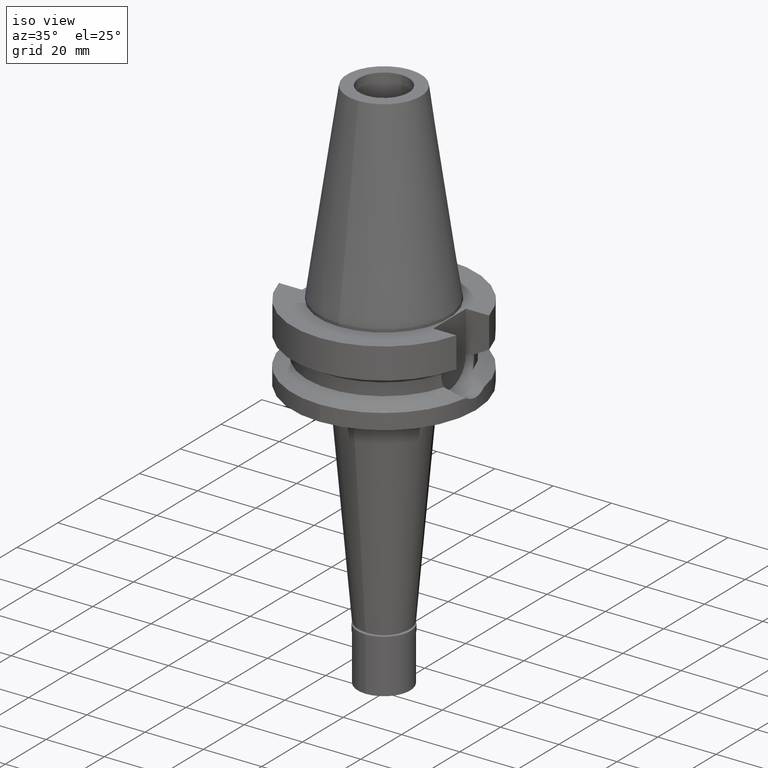
[diagram: clean part render]
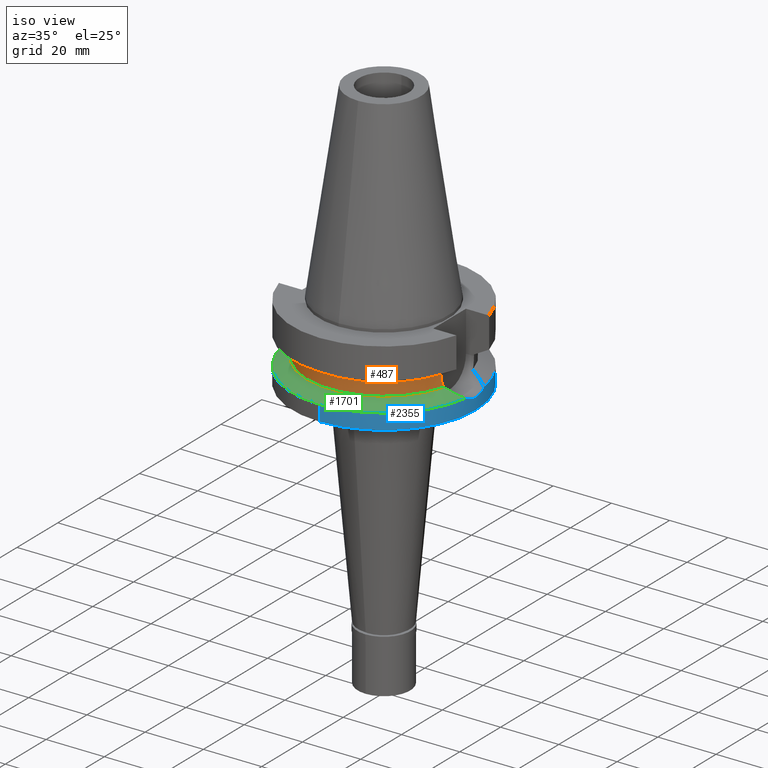
[diagram: same view with three faces highlighted in distinct colors, each labeled with its STEP entity id]
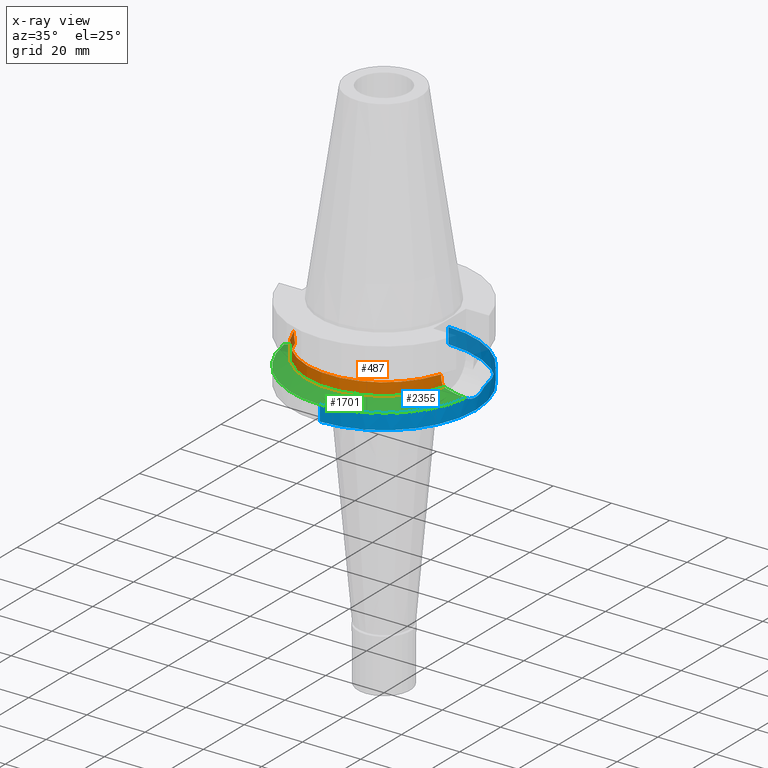
[diagram: x-ray of the same camera — body ghosted, the three highlighted faces saturated]
A machine part, iso view with three faces highlighted in distinct colors.
The next image is the same camera in x-ray (body ghosted, the three faces saturated) — at least one of them is partly hidden behind the body in this view.
Their STEP definitions:

[orange] entity #487 — the highlighted cylindrical surface (partial cylindrical patch) has radius 26.5 mm, axis along (0, 0, -1).
#2 = CARTESIAN_POINT ( 'NONE',  ( 25.28049684872011937, -7.946995976261288952, -16.24428919065888977 ) ) ;
#18 = CARTESIAN_POINT ( 'NONE',  ( 25.24772266958000344, -8.050000000000000711, -14.94999999999999929 ) ) ;
#30 = CARTESIAN_POINT ( 'NONE',  ( 25.36817666880169497, -7.663730637058542960, -17.48830498329483518 ) ) ;
#98 = CARTESIAN_POINT ( 'NONE',  ( 25.53175183775000079, -7.097862220092999941, -18.74774300138999905 ) ) ;
#144 = VECTOR ( 'NONE', #870, 1000.000000000000114 ) ;
#163 = LINE ( 'NONE', #2702, #2732 ) ;
#222 = CARTESIAN_POINT ( 'NONE',  ( 25.24772266957999278, -8.050000000000000711, -15.26998451552486280 ) ) ;
#225 = EDGE_CURVE ( 'NONE', #399, #1502, #478, .T. ) ;
#266 = CARTESIAN_POINT ( 'NONE',  ( 25.25396537036859357, -8.030898972450218665, -15.59374611992982551 ) ) ;
#320 = DIRECTION ( 'NONE',  ( 0.0000000000000000000, 0.0000000000000000000, -1.000000000000000000 ) ) ;
#321 = CARTESIAN_POINT ( 'NONE',  ( -25.27267964220301621, -7.973335155931463802, -16.24499043154087019 ) ) ;
#355 = CARTESIAN_POINT ( 'NONE',  ( 25.53175183775000079, -7.097862220092999941, -18.74774300138999905 ) ) ;
#384 = DIRECTION ( 'NONE',  ( 0.0000000000000000000, 0.0000000000000000000, -1.000000000000000000 ) ) ;
#399 = VERTEX_POINT ( 'NONE', #2690 ) ;
#416 = CARTESIAN_POINT ( 'NONE',  ( -25.24772413126000359, -8.049995415628000472, -14.45229202918999967 ) ) ;
#478 = CIRCLE ( 'NONE', #2583, 26.50000000000000711 ) ;
#483 = ORIENTED_EDGE ( 'NONE', *, *, #658, .T. ) ;
#487 = ADVANCED_FACE ( 'NONE', ( #2891 ), #2655, .T. ) ;
#500 = EDGE_LOOP ( 'NONE', ( #2335, #483, #929, #862, #2092, #518 ) ) ;
#513 = VERTEX_POINT ( 'NONE', #18 ) ;
#518 = ORIENTED_EDGE ( 'NONE', *, *, #552, .F. ) ;
#524 = DIRECTION ( 'NONE',  ( 0.9527442516822307583, -0.3037735849057093818, 0.0000000000000000000 ) ) ;
#530 = CARTESIAN_POINT ( 'NONE',  ( -25.24772266958000344, -8.050000000000000711, -14.94999999999999929 ) ) ;
#552 = EDGE_CURVE ( 'NONE', #1651, #1502, #898, .T. ) ;
#561 = CARTESIAN_POINT ( 'NONE',  ( -25.32415339823800693, -7.806463147621018450, -16.91521530248330762 ) ) ;
#613 = CARTESIAN_POINT ( 'NONE',  ( 0.0000000000000000000, 2.136273876432999670E-14, 74.44000000000001194 ) ) ;
#658 = EDGE_CURVE ( 'NONE', #2889, #2565, #1531, .T. ) ;
#687 = CARTESIAN_POINT ( 'NONE',  ( -25.53175183775000079, -7.097862220092999941, -18.74774300138999905 ) ) ;
#709 = CARTESIAN_POINT ( 'NONE',  ( 25.32121190436317093, -7.815994543146019602, -16.87693897482731131 ) ) ;
#797 = CARTESIAN_POINT ( 'NONE',  ( -25.37569502948931444, -7.637838761477326877, -17.49780446183531524 ) ) ;
#862 = ORIENTED_EDGE ( 'NONE', *, *, #880, .F. ) ;
#870 = DIRECTION ( 'NONE',  ( -2.936828755051898348E-06, 9.210967020926684321E-06, 0.9999999999532664940 ) ) ;
#880 = EDGE_CURVE ( 'NONE', #399, #513, #163, .T. ) ;
#898 = LINE ( 'NONE', #2279, #144 ) ;
#912 = CARTESIAN_POINT ( 'NONE',  ( 25.29454292549445071, -7.902026734854615597, -16.48861329468625669 ) ) ;
#929 = ORIENTED_EDGE ( 'NONE', *, *, #1135, .F. ) ;
#966 = CARTESIAN_POINT ( 'NONE',  ( -25.39161415870589877, -7.584927955021766088, -17.65164487468283383 ) ) ;
#1135 = EDGE_CURVE ( 'NONE', #513, #2565, #2391, .T. ) ;
#1184 = CARTESIAN_POINT ( 'NONE',  ( 25.43788225503731937, -7.435520914581331020, -18.11666952168572209 ) ) ;
#1191 = CARTESIAN_POINT ( 'NONE',  ( -25.53175183775000079, -7.097862220092999941, -18.74774300138999905 ) ) ;
#1215 = CARTESIAN_POINT ( 'NONE',  ( 0.0000000000000000000, 1.065333950388000029E-14, -14.45225699861000024 ) ) ;
#1252 = CARTESIAN_POINT ( 'NONE',  ( -25.32840508998330975, -7.792668837054367970, -16.96920308240288833 ) ) ;
#1417 = CARTESIAN_POINT ( 'NONE',  ( -25.32546393109957350, -7.802212764474015572, -16.93200521438827622 ) ) ;
#1485 = AXIS2_PLACEMENT_3D ( 'NONE', #1579, #2295, #2064 ) ;
#1502 = VERTEX_POINT ( 'NONE', #416 ) ;
#1531 = CIRCLE ( 'NONE', #1485, 26.49999999999998224 ) ;
#1579 = CARTESIAN_POINT ( 'NONE',  ( 0.0000000000000000000, 0.0000000000000000000, -18.74774300138999905 ) ) ;
#1651 = VERTEX_POINT ( 'NONE', #530 ) ;
#1677 = CARTESIAN_POINT ( 'NONE',  ( -25.44390372128112077, -7.408325733453185791, -18.11690357828252473 ) ) ;
#1704 = CARTESIAN_POINT ( 'NONE',  ( -25.48480632956524516, -7.266730116910171233, -18.43213421359637394 ) ) ;
#1719 = CARTESIAN_POINT ( 'NONE',  ( -25.33288764354210798, -7.778115188336431451, -17.02509724684072978 ) ) ;
#1829 = CARTESIAN_POINT ( 'NONE',  ( 25.30215121708055293, -7.877593292754567322, -16.61077438410662666 ) ) ;
#1909 = CARTESIAN_POINT ( 'NONE',  ( -25.34384264181177215, -7.742472632649029407, -17.15618260535348583 ) ) ;
#2063 = CARTESIAN_POINT ( 'NONE',  ( 25.31953811419877809, -7.821417378317961244, -16.85482737181430224 ) ) ;
#2064 = DIRECTION ( 'NONE',  ( -0.9634623335000935818, -0.2678438573619981722, 0.0000000000000000000 ) ) ;
#2075 = CARTESIAN_POINT ( 'NONE',  ( 25.31205175036245336, -7.845641664298868001, -16.75318037307348362 ) ) ;
#2092 = ORIENTED_EDGE ( 'NONE', *, *, #225, .T. ) ;
#2150 = CARTESIAN_POINT ( 'NONE',  ( -25.24772266958000344, -8.050000000000000711, -14.94999999999999929 ) ) ;
#2167 = CARTESIAN_POINT ( 'NONE',  ( -25.24772266957999634, -8.049999999999979394, -15.58980474858205945 ) ) ;
#2278 = CARTESIAN_POINT ( 'NONE',  ( 25.24772266958000344, -8.050000000000000711, -14.94999999999999929 ) ) ;
#2279 = CARTESIAN_POINT ( 'NONE',  ( -25.24772266958000344, -8.050000000000000711, -14.94999999999999929 ) ) ;
#2295 = DIRECTION ( 'NONE',  ( 0.0000000000000000000, 0.0000000000000000000, 1.000000000000000000 ) ) ;
#2335 = ORIENTED_EDGE ( 'NONE', *, *, #2537, .F. ) ;
#2391 = B_SPLINE_CURVE_WITH_KNOTS ( 'NONE', 3,
 ( #2278, #222, #266, #2513, #2, #912, #1829, #2075, #2746, #2063, #709, #30, #1184, #355 ),
 .UNSPECIFIED., .F., .F.,
 ( 4, 2, 2, 1, 1, 2, 2, 4 ),
 ( 0.0000000000000000000, 0.2500000000000046074, 0.3750000000000077161, 0.4375000000000092149, 0.4687500000000101030, 0.4843750000000106026, 0.5000000000000111022, 1.000000000000000000 ),
 .UNSPECIFIED. ) ;
#2434 = AXIS2_PLACEMENT_3D ( 'NONE', #613, #384, #2461 ) ;
#2461 = DIRECTION ( 'NONE',  ( 0.0000000000000000000, -1.000000000000000000, 0.0000000000000000000 ) ) ;
#2513 = CARTESIAN_POINT ( 'NONE',  ( 25.27269347273437106, -7.971777372259754912, -16.08140504253957559 ) ) ;
#2537 = EDGE_CURVE ( 'NONE', #2889, #1651, #2765, .T. ) ;
#2565 = VERTEX_POINT ( 'NONE', #98 ) ;
#2583 = AXIS2_PLACEMENT_3D ( 'NONE', #1215, #320, #524 ) ;
#2589 = CARTESIAN_POINT ( 'NONE',  ( -25.35408242312716354, -7.708967322931905564, -17.26962711324174293 ) ) ;
#2655 = CYLINDRICAL_SURFACE ( 'NONE', #2434, 26.50000000000000000 ) ;
#2688 = DIRECTION ( 'NONE',  ( 1.016292694956001706E-06, 3.187464706934008891E-06, -0.9999999999944036988 ) ) ;
#2690 = CARTESIAN_POINT ( 'NONE',  ( 25.24772266958000344, -8.050000000000000711, -14.45225699861000024 ) ) ;
#2702 = CARTESIAN_POINT ( 'NONE',  ( 25.24772216371000155, -8.050001586577000268, -14.45224487577000083 ) ) ;
#2732 = VECTOR ( 'NONE', #2688, 999.9999999999998863 ) ;
#2746 = CARTESIAN_POINT ( 'NONE',  ( 25.31651430600431141, -7.831206233909810521, -16.81417435993506615 ) ) ;
#2765 = B_SPLINE_CURVE_WITH_KNOTS ( 'NONE', 3,
 ( #1191, #1704, #1677, #966, #797, #2589, #1909, #1719, #1252, #1417, #561, #321, #2167, #2150 ),
 .UNSPECIFIED., .F., .F.,
 ( 4, 2, 2, 1, 1, 2, 2, 4 ),
 ( 0.0000000000000000000, 0.2500000000000101030, 0.3750000000000152656, 0.4375000000000177636, 0.4687500000000178191, 0.4843750000000180411, 0.5000000000000182077, 1.000000000000000000 ),
 .UNSPECIFIED. ) ;
#2889 = VERTEX_POINT ( 'NONE', #687 ) ;
#2891 = FACE_OUTER_BOUND ( 'NONE', #500, .T. ) ;

[blue] entity #2355 — the highlighted cylindrical surface (partial cylindrical patch) has radius 31.5 mm, axis along (0, 0, -1).
#36 = DIRECTION ( 'NONE',  ( 0.0000000000000000000, 0.0000000000000000000, -1.000000000000000000 ) ) ;
#50 = EDGE_CURVE ( 'NONE', #2351, #1646, #1814, .T. ) ;
#56 = CARTESIAN_POINT ( 'NONE',  ( 31.50000030226999925, -0.7652255573043680315, -23.00000000000000000 ) ) ;
#68 = CARTESIAN_POINT ( 'NONE',  ( 31.47113575803164309, -1.554964651594184843, -22.89006402809559049 ) ) ;
#82 = CARTESIAN_POINT ( 'NONE',  ( 31.23205437648185168, -4.116746326629337815, -21.88196564640763953 ) ) ;
#86 = CARTESIAN_POINT ( 'NONE',  ( 31.41961539192766040, 2.247536052679425023, -22.67995511561028721 ) ) ;
#99 = VECTOR ( 'NONE', #1738, 1000.000000000000000 ) ;
#103 = CARTESIAN_POINT ( 'NONE',  ( 31.47113333814916558, 1.356640495605542007, -22.88731189953729128 ) ) ;
#272 = CARTESIAN_POINT ( 'NONE',  ( 31.38993145523567208, -2.631335982978365351, -22.55874663194875041 ) ) ;
#341 = CARTESIAN_POINT ( 'NONE',  ( 31.41183231690728661, -2.353663757143418689, -22.64823938059995001 ) ) ;
#366 = CARTESIAN_POINT ( 'NONE',  ( 0.0000000000000000000, 31.50000000000000000, -21.63449434733000132 ) ) ;
#424 = CIRCLE ( 'NONE', #1519, 31.50000000000000000 ) ;
#551 = CARTESIAN_POINT ( 'NONE',  ( 31.50000030226999570, 4.155221766569999196E-14, -23.00000138148999795 ) ) ;
#576 = CARTESIAN_POINT ( 'NONE',  ( 31.27811616779987247, -3.746663409866644923, -22.08609477308995750 ) ) ;
#586 = AXIS2_PLACEMENT_3D ( 'NONE', #1145, #36, #2271 ) ;
#596 = CARTESIAN_POINT ( 'NONE',  ( 31.36324472122398177, 3.008186403156279720, -22.45010119750621413 ) ) ;
#607 = CARTESIAN_POINT ( 'NONE',  ( 0.0000000000000000000, -31.50000000000000000, -27.00000000000000000 ) ) ;
#642 = ORIENTED_EDGE ( 'NONE', *, *, #1474, .T. ) ;
#650 = DIRECTION ( 'NONE',  ( 0.0000000000000000000, 1.000000000000000000, 0.0000000000000000000 ) ) ;
#689 = DIRECTION ( 'NONE',  ( 0.0000000000000000000, 0.0000000000000000000, -1.000000000000000000 ) ) ;
#729 = FACE_OUTER_BOUND ( 'NONE', #1242, .T. ) ;
#766 = AXIS2_PLACEMENT_3D ( 'NONE', #2634, #2883, #2435 ) ;
#772 = CARTESIAN_POINT ( 'NONE',  ( 0.0000000000000000000, 31.50000000000000000, -21.63449434733000132 ) ) ;
#816 = ORIENTED_EDGE ( 'NONE', *, *, #2126, .F. ) ;
#825 = DIRECTION ( 'NONE',  ( 0.0000000000000000000, 1.099151708819000049E-13, -1.000000000000000000 ) ) ;
#829 = VERTEX_POINT ( 'NONE', #772 ) ;
#832 = ORIENTED_EDGE ( 'NONE', *, *, #2497, .F. ) ;
#840 = LINE ( 'NONE', #1300, #99 ) ;
#982 = CARTESIAN_POINT ( 'NONE',  ( 31.46211241186140484, 1.552211430492609123, -22.85146869859348229 ) ) ;
#1000 = CARTESIAN_POINT ( 'NONE',  ( 31.28511117661814112, 3.747948078326578614, -22.12944254150467316 ) ) ;
#1013 = CARTESIAN_POINT ( 'NONE',  ( 31.44587474454343123, 1.845305156296520810, -22.78628520793472845 ) ) ;
#1044 = AXIS2_PLACEMENT_3D ( 'NONE', #1404, #689, #1112 ) ;
#1073 = ORIENTED_EDGE ( 'NONE', *, *, #1196, .T. ) ;
#1112 = DIRECTION ( 'NONE',  ( 0.0000000000000000000, -1.000000000000000000, 0.0000000000000000000 ) ) ;
#1145 = CARTESIAN_POINT ( 'NONE',  ( 0.0000000000000000000, 0.0000000000000000000, -21.63449434733000132 ) ) ;
#1148 = CARTESIAN_POINT ( 'NONE',  ( 0.0000000000000000000, 0.0000000000000000000, -21.63449434733000132 ) ) ;
#1178 = EDGE_CURVE ( 'NONE', #1646, #2286, #840, .T. ) ;
#1196 = EDGE_CURVE ( 'NONE', #2286, #1919, #2837, .T. ) ;
#1208 = CARTESIAN_POINT ( 'NONE',  ( 31.50000030227000636, 0.3826090916207249282, -23.00000000000000355 ) ) ;
#1220 = CARTESIAN_POINT ( 'NONE',  ( 31.43707934141286842, 1.991785373662814385, -22.75083979999427086 ) ) ;
#1242 = EDGE_LOOP ( 'NONE', ( #1549, #2232, #1073, #1556, #642, #816, #832 ) ) ;
#1256 = CARTESIAN_POINT ( 'NONE',  ( 31.41697254242929205, 2.284015593790098997, -22.66919255136125244 ) ) ;
#1300 = CARTESIAN_POINT ( 'NONE',  ( 0.0000000000000000000, -31.50000000000000000, -21.63449434733000132 ) ) ;
#1404 = CARTESIAN_POINT ( 'NONE',  ( 0.0000000000000000000, 2.136273876432999670E-14, 74.44000000000001194 ) ) ;
#1474 = EDGE_CURVE ( 'NONE', #829, #2649, #424, .T. ) ;
#1482 = CARTESIAN_POINT ( 'NONE',  ( 31.49278356123979350, 0.7711873033137145450, -22.97267690005150342 ) ) ;
#1519 = AXIS2_PLACEMENT_3D ( 'NONE', #1148, #2060, #650 ) ;
#1522 = VECTOR ( 'NONE', #825, 1000.000000000000000 ) ;
#1549 = ORIENTED_EDGE ( 'NONE', *, *, #50, .T. ) ;
#1556 = ORIENTED_EDGE ( 'NONE', *, *, #2293, .F. ) ;
#1646 = VERTEX_POINT ( 'NONE', #2825 ) ;
#1724 = CARTESIAN_POINT ( 'NONE',  ( 31.41519654756640278, 2.308329250101830432, -22.66195675239377039 ) ) ;
#1738 = DIRECTION ( 'NONE',  ( 0.0000000000000000000, -1.105773104655000034E-13, -1.000000000000000000 ) ) ;
#1814 = CIRCLE ( 'NONE', #586, 31.50000000000001421 ) ;
#1834 = CARTESIAN_POINT ( 'NONE',  ( 31.17899877608999759, -4.485536235554000051, -21.63449434733000132 ) ) ;
#1893 = CARTESIAN_POINT ( 'NONE',  ( 31.17899877608999759, -4.485536235554000051, -21.63449434733000132 ) ) ;
#1919 = VERTEX_POINT ( 'NONE', #2307 ) ;
#1926 = CARTESIAN_POINT ( 'NONE',  ( 31.41023747458456583, -2.374835805079123840, -22.64173436499367043 ) ) ;
#1936 = CARTESIAN_POINT ( 'NONE',  ( 31.33671814116611287, -3.204274407353942866, -22.33747821328194405 ) ) ;
#2060 = DIRECTION ( 'NONE',  ( 0.0000000000000000000, 0.0000000000000000000, -1.000000000000000000 ) ) ;
#2102 = CARTESIAN_POINT ( 'NONE',  ( 31.37855930989746156, -2.761990093287100212, -22.51192666843388324 ) ) ;
#2126 = EDGE_CURVE ( 'NONE', #2580, #2649, #2237, .T. ) ;
#2133 = CARTESIAN_POINT ( 'NONE',  ( 31.35450368001973231, -3.025551444174683802, -22.41216023115313050 ) ) ;
#2232 = ORIENTED_EDGE ( 'NONE', *, *, #1178, .T. ) ;
#2237 = B_SPLINE_CURVE_WITH_KNOTS ( 'NONE', 3,
 ( #551, #1208, #1482, #103, #982, #1013, #1220, #2388, #86, #1256, #1724, #2633, #596, #1000, #2450 ),
 .UNSPECIFIED., .F., .F.,
 ( 4, 2, 2, 1, 1, 1, 2, 2, 4 ),
 ( 0.0000000000000000000, 0.2500000000000014433, 0.3750000000000021649, 0.4375000000000022204, 0.4687500000000017764, 0.4843750000000013323, 0.4921875000000009992, 0.5000000000000006661, 1.000000000000000000 ),
 .UNSPECIFIED. ) ;
#2271 = DIRECTION ( 'NONE',  ( 0.9898094849552905306, -0.1423979757318985240, 0.0000000000000000000 ) ) ;
#2286 = VERTEX_POINT ( 'NONE', #607 ) ;
#2293 = EDGE_CURVE ( 'NONE', #829, #1919, #2896, .T. ) ;
#2307 = CARTESIAN_POINT ( 'NONE',  ( 0.0000000000000000000, 31.50000000000000000, -27.00000000000000000 ) ) ;
#2344 = CARTESIAN_POINT ( 'NONE',  ( 31.40205153632907198, -2.481143929156545802, -22.60832449611487860 ) ) ;
#2351 = VERTEX_POINT ( 'NONE', #1834 ) ;
#2355 = ADVANCED_FACE ( 'NONE', ( #729 ), #2521, .T. ) ;
#2360 = CARTESIAN_POINT ( 'NONE',  ( 31.40782472142544890, -2.406637570769966761, -22.63189169568958548 ) ) ;
#2371 = CARTESIAN_POINT ( 'NONE',  ( 31.41250465254752910, -2.344685119770060222, -22.65098129005091110 ) ) ;
#2388 = CARTESIAN_POINT ( 'NONE',  ( 31.42563404118527970, 2.162357063222001496, -22.70443063269420136 ) ) ;
#2435 = DIRECTION ( 'NONE',  ( 0.0000000000000000000, -1.000000000000000000, 0.0000000000000000000 ) ) ;
#2450 = CARTESIAN_POINT ( 'NONE',  ( 31.17899877608999759, 4.485536235554000051, -21.63449434733000132 ) ) ;
#2497 = EDGE_CURVE ( 'NONE', #2351, #2580, #2654, .T. ) ;
#2521 = CYLINDRICAL_SURFACE ( 'NONE', #1044, 31.50000000000000000 ) ;
#2580 = VERTEX_POINT ( 'NONE', #2849 ) ;
#2629 = CARTESIAN_POINT ( 'NONE',  ( 31.50000030226999570, 4.155221766569999196E-14, -23.00000138148999795 ) ) ;
#2633 = CARTESIAN_POINT ( 'NONE',  ( 31.41418307691818512, 2.322078179483369365, -22.65782554032321983 ) ) ;
#2634 = CARTESIAN_POINT ( 'NONE',  ( 0.0000000000000000000, 2.136273876432999670E-14, -27.00000000000000000 ) ) ;
#2649 = VERTEX_POINT ( 'NONE', #2920 ) ;
#2654 = B_SPLINE_CURVE_WITH_KNOTS ( 'NONE', 3,
 ( #1893, #82, #576, #1936, #2133, #2102, #272, #2344, #2360, #1926, #341, #2371, #68, #56, #2629 ),
 .UNSPECIFIED., .F., .F.,
 ( 4, 2, 2, 1, 1, 1, 2, 2, 4 ),
 ( 0.0000000000000000000, 0.2500000000000025535, 0.3750000000000032752, 0.4375000000000038303, 0.4687500000000041078, 0.4843750000000038858, 0.4921875000000039413, 0.5000000000000038858, 1.000000000000000000 ),
 .UNSPECIFIED. ) ;
#2825 = CARTESIAN_POINT ( 'NONE',  ( 0.0000000000000000000, -31.50000000000000000, -21.63449434733000132 ) ) ;
#2837 = CIRCLE ( 'NONE', #766, 31.50000000000000000 ) ;
#2849 = CARTESIAN_POINT ( 'NONE',  ( 31.50000030226999570, 4.155221766569999196E-14, -23.00000138148999795 ) ) ;
#2883 = DIRECTION ( 'NONE',  ( 0.0000000000000000000, 0.0000000000000000000, 1.000000000000000000 ) ) ;
#2896 = LINE ( 'NONE', #366, #1522 ) ;
#2920 = CARTESIAN_POINT ( 'NONE',  ( 31.17899877608999759, 4.485536235554000051, -21.63449434733000132 ) ) ;

[green] entity #1701 — the highlighted conical surface has half-angle 60 deg.
#36 = DIRECTION ( 'NONE',  ( 0.0000000000000000000, 0.0000000000000000000, -1.000000000000000000 ) ) ;
#50 = EDGE_CURVE ( 'NONE', #2351, #1646, #1814, .T. ) ;
#98 = CARTESIAN_POINT ( 'NONE',  ( 25.53175183775000079, -7.097862220092999941, -18.74774300138999905 ) ) ;
#145 = AXIS2_PLACEMENT_3D ( 'NONE', #2406, #360, #2368 ) ;
#152 = CARTESIAN_POINT ( 'NONE',  ( -27.66925114019101883, -6.418348164890510965, -19.84421269396070997 ) ) ;
#194 = ORIENTED_EDGE ( 'NONE', *, *, #658, .F. ) ;
#229 = CARTESIAN_POINT ( 'NONE',  ( 28.22953826606418204, -6.162404829156407970, -20.13018315992344398 ) ) ;
#242 = CARTESIAN_POINT ( 'NONE',  ( 29.74515294519985176, -5.455023499874007697, -20.90420164553910709 ) ) ;
#360 = DIRECTION ( 'NONE',  ( 0.0000000000000000000, 0.0000000000000000000, -1.000000000000000000 ) ) ;
#382 = CARTESIAN_POINT ( 'NONE',  ( -25.53175183775000079, -7.097862220092999941, -18.74774300138999905 ) ) ;
#419 = ORIENTED_EDGE ( 'NONE', *, *, #1824, .F. ) ;
#586 = AXIS2_PLACEMENT_3D ( 'NONE', #1145, #36, #2271 ) ;
#623 = ORIENTED_EDGE ( 'NONE', *, *, #50, .F. ) ;
#652 = EDGE_LOOP ( 'NONE', ( #760, #623, #419, #194, #1058 ) ) ;
#658 = EDGE_CURVE ( 'NONE', #2889, #2565, #1531, .T. ) ;
#687 = CARTESIAN_POINT ( 'NONE',  ( -25.53175183775000079, -7.097862220092999941, -18.74774300138999905 ) ) ;
#718 = DIRECTION ( 'NONE',  ( 0.0000000000000000000, 0.0000000000000000000, -1.000000000000000000 ) ) ;
#738 = CARTESIAN_POINT ( 'NONE',  ( 27.84943376356608624, -6.322254669031635466, -19.93595219541527186 ) ) ;
#752 = CARTESIAN_POINT ( 'NONE',  ( 25.53175183775000079, -7.097862220092999941, -18.74774300138999905 ) ) ;
#760 = ORIENTED_EDGE ( 'NONE', *, *, #843, .F. ) ;
#819 = CARTESIAN_POINT ( 'NONE',  ( -31.17899877608999759, -4.485536235554000051, -21.63449434733000132 ) ) ;
#843 = EDGE_CURVE ( 'NONE', #1646, #1847, #2436, .T. ) ;
#915 = CARTESIAN_POINT ( 'NONE',  ( 30.52789498094999132, -4.979508270115247548, -21.30302133752228144 ) ) ;
#917 = EDGE_CURVE ( 'NONE', #1847, #2889, #1574, .T. ) ;
#928 = CARTESIAN_POINT ( 'NONE',  ( 28.59619564298390060, -5.999977847405878251, -20.31745316312963823 ) ) ;
#947 = CARTESIAN_POINT ( 'NONE',  ( 28.71647513429454079, -5.944427160081861672, -20.37887186986552734 ) ) ;
#975 = CARTESIAN_POINT ( 'NONE',  ( 27.58527306143798441, -6.426637869945934334, -19.80087066693595688 ) ) ;
#1058 = ORIENTED_EDGE ( 'NONE', *, *, #917, .F. ) ;
#1074 = CARTESIAN_POINT ( 'NONE',  ( -30.82003446959535609, -4.757871199868055179, -21.45174778683595562 ) ) ;
#1093 = CARTESIAN_POINT ( 'NONE',  ( -29.52708336405174094, -5.539904390185822258, -20.79316446836606858 ) ) ;
#1120 = CARTESIAN_POINT ( 'NONE',  ( -30.41991622289886621, -5.025150792224814644, -21.24823290170100520 ) ) ;
#1145 = CARTESIAN_POINT ( 'NONE',  ( 0.0000000000000000000, 0.0000000000000000000, -21.63449434733000132 ) ) ;
#1369 = CARTESIAN_POINT ( 'NONE',  ( 26.76051785366558988, -6.731279595602247312, -19.37864055449079714 ) ) ;
#1485 = AXIS2_PLACEMENT_3D ( 'NONE', #1579, #2295, #2064 ) ;
#1515 = CARTESIAN_POINT ( 'NONE',  ( -28.75818132803983218, -5.924254694509399677, -20.40061124592214270 ) ) ;
#1531 = CIRCLE ( 'NONE', #1485, 26.49999999999998224 ) ;
#1546 = CARTESIAN_POINT ( 'NONE',  ( -28.53810092434459378, -6.025485193742039947, -20.28816909612596220 ) ) ;
#1574 = B_SPLINE_CURVE_WITH_KNOTS ( 'NONE', 3,
 ( #819, #1074, #1120, #1787, #1093, #2945, #1992, #1515, #2013, #2458, #2425, #2473, #1546, #152, #2026, #382 ),
 .UNSPECIFIED., .F., .F.,
 ( 4, 2, 2, 1, 1, 1, 1, 2, 2, 4 ),
 ( 0.0000000000000000000, 0.2500000000000044964, 0.3750000000000061062, 0.4375000000000069944, 0.4687500000000073830, 0.4843750000000081601, 0.4921875000000079381, 0.4960937500000078826, 0.5000000000000077716, 1.000000000000000000 ),
 .UNSPECIFIED. ) ;
#1579 = CARTESIAN_POINT ( 'NONE',  ( 0.0000000000000000000, 0.0000000000000000000, -18.74774300138999905 ) ) ;
#1634 = B_SPLINE_CURVE_WITH_KNOTS ( 'NONE', 3,
 ( #752, #1640, #1369, #975, #738, #229, #2323, #928, #947, #242, #915, #2067 ),
 .UNSPECIFIED., .F., .F.,
 ( 4, 2, 2, 2, 2, 4 ),
 ( 0.0000000000000000000, 0.2500000000000020539, 0.3750000000000033862, 0.4375000000000034972, 0.5000000000000035527, 1.000000000000000000 ),
 .UNSPECIFIED. ) ;
#1640 = CARTESIAN_POINT ( 'NONE',  ( 26.16765024663319750, -6.923064644053599004, -19.07443417313719181 ) ) ;
#1646 = VERTEX_POINT ( 'NONE', #2825 ) ;
#1693 = FACE_OUTER_BOUND ( 'NONE', #652, .T. ) ;
#1701 = ADVANCED_FACE ( 'NONE', ( #1693 ), #2141, .T. ) ;
#1787 = CARTESIAN_POINT ( 'NONE',  ( -29.75800794255136239, -5.412870898042441148, -20.91092888594484123 ) ) ;
#1814 = CIRCLE ( 'NONE', #586, 31.50000000000001421 ) ;
#1824 = EDGE_CURVE ( 'NONE', #2565, #2351, #1634, .T. ) ;
#1834 = CARTESIAN_POINT ( 'NONE',  ( 31.17899877608999759, -4.485536235554000051, -21.63449434733000132 ) ) ;
#1847 = VERTEX_POINT ( 'NONE', #2540 ) ;
#1992 = CARTESIAN_POINT ( 'NONE',  ( -28.98049578917011360, -5.818611408600681933, -20.51416723004519937 ) ) ;
#2013 = CARTESIAN_POINT ( 'NONE',  ( -28.64533614289611307, -5.976566705945508318, -20.34296010443359393 ) ) ;
#2026 = CARTESIAN_POINT ( 'NONE',  ( -26.66937986787434767, -6.785147768657584066, -19.33219647538571451 ) ) ;
#2064 = DIRECTION ( 'NONE',  ( -0.9634623335000935818, -0.2678438573619981722, 0.0000000000000000000 ) ) ;
#2067 = CARTESIAN_POINT ( 'NONE',  ( 31.17899877608999759, -4.485536235554000051, -21.63449434733000132 ) ) ;
#2122 = CARTESIAN_POINT ( 'NONE',  ( 0.0000000000000000000, 0.0000000000000000000, -20.19111867435999841 ) ) ;
#2141 = CONICAL_SURFACE ( 'NONE', #2520, 29.00000000000000000, 1.047197551196400456 ) ;
#2271 = DIRECTION ( 'NONE',  ( 0.9898094849552905306, -0.1423979757318985240, 0.0000000000000000000 ) ) ;
#2295 = DIRECTION ( 'NONE',  ( 0.0000000000000000000, 0.0000000000000000000, 1.000000000000000000 ) ) ;
#2323 = CARTESIAN_POINT ( 'NONE',  ( 28.35355034178120803, -6.108575070382970651, -20.19352917768627620 ) ) ;
#2351 = VERTEX_POINT ( 'NONE', #1834 ) ;
#2368 = DIRECTION ( 'NONE',  ( 0.0000000000000000000, -1.000000000000000000, 0.0000000000000000000 ) ) ;
#2406 = CARTESIAN_POINT ( 'NONE',  ( 0.0000000000000000000, 0.0000000000000000000, -21.63449434733000132 ) ) ;
#2425 = CARTESIAN_POINT ( 'NONE',  ( -28.56403917216296051, -6.013718339216495679, -20.30142250756335898 ) ) ;
#2436 = CIRCLE ( 'NONE', #145, 31.50000000000000000 ) ;
#2458 = CARTESIAN_POINT ( 'NONE',  ( -28.58849156167959293, -6.002592575091154181, -20.31391647621737562 ) ) ;
#2473 = CARTESIAN_POINT ( 'NONE',  ( -28.54771748445449120, -6.021129220466929333, -20.29308282064986813 ) ) ;
#2520 = AXIS2_PLACEMENT_3D ( 'NONE', #2122, #718, #2808 ) ;
#2540 = CARTESIAN_POINT ( 'NONE',  ( -31.17899877608999759, -4.485536235554000051, -21.63449434733000132 ) ) ;
#2565 = VERTEX_POINT ( 'NONE', #98 ) ;
#2808 = DIRECTION ( 'NONE',  ( 0.0000000000000000000, -1.000000000000000000, 0.0000000000000000000 ) ) ;
#2825 = CARTESIAN_POINT ( 'NONE',  ( 0.0000000000000000000, -31.50000000000000000, -21.63449434733000132 ) ) ;
#2889 = VERTEX_POINT ( 'NONE', #687 ) ;
#2945 = CARTESIAN_POINT ( 'NONE',  ( -29.16526376872660720, -5.726387315161532321, -20.60850167720668580 ) ) ;